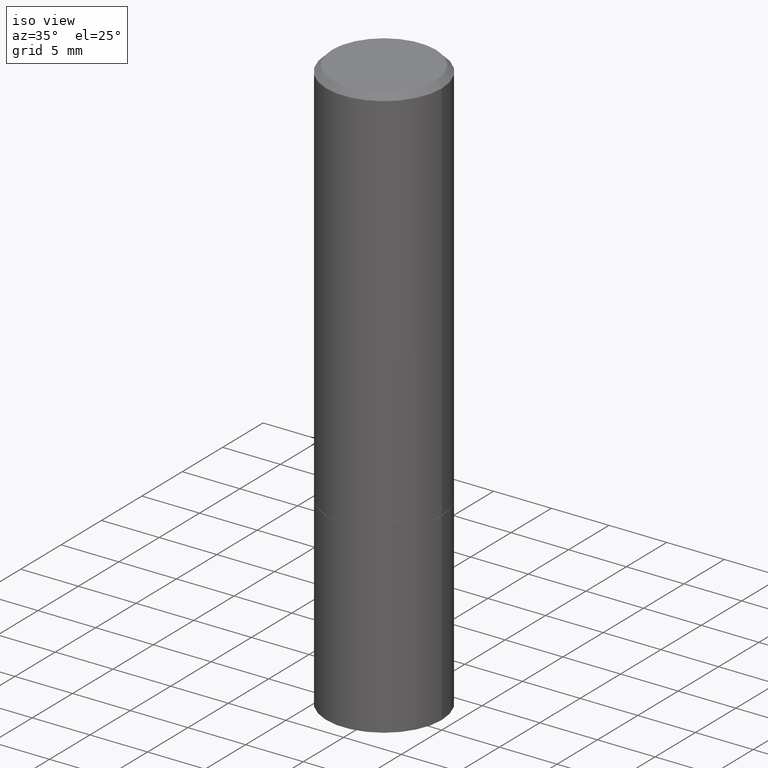
[diagram: clean part render]
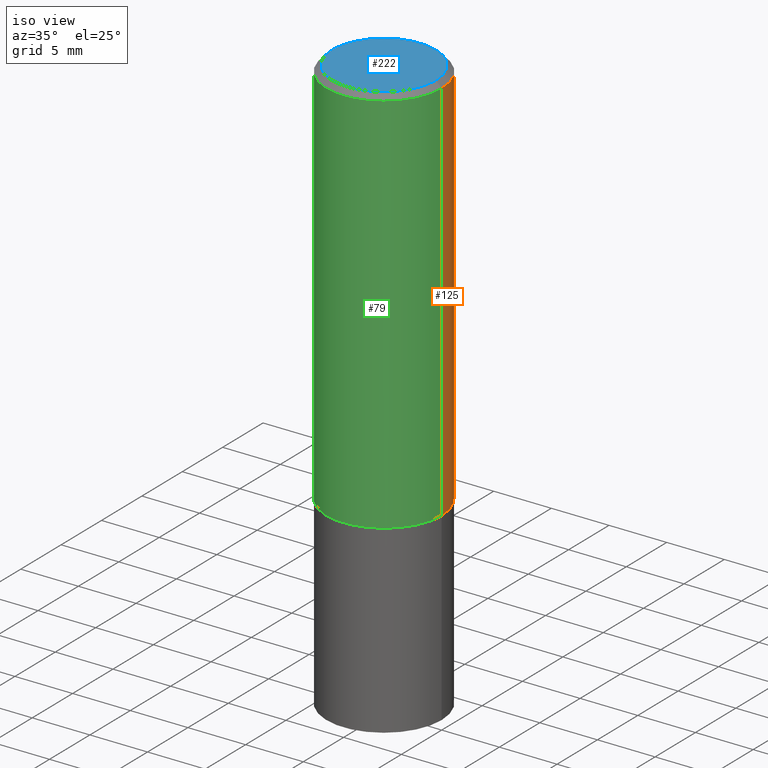
[diagram: same view with three faces highlighted in distinct colors, each labeled with its STEP entity id]
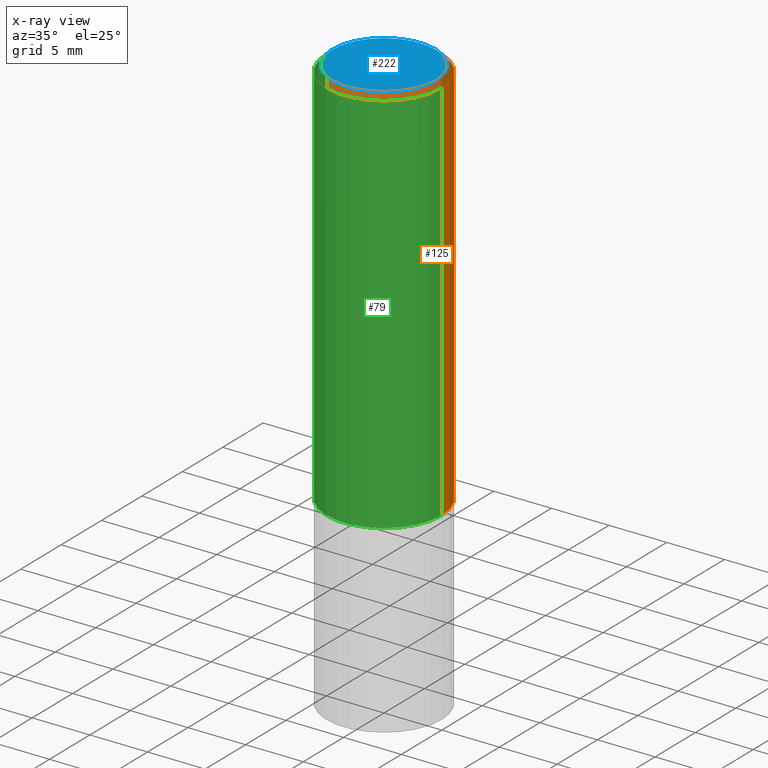
[diagram: x-ray of the same camera — body ghosted, the three highlighted faces saturated]
A machine part, iso view with three faces highlighted in distinct colors.
The next image is the same camera in x-ray (body ghosted, the three faces saturated) — at least one of them is partly hidden behind the body in this view.
Their STEP definitions:

[orange] entity #125 — the highlighted cylindrical surface (partial cylindrical patch) has radius 5 mm, axis along (-0, 0, 1).
#2 = EDGE_CURVE ( 'NONE', #134, #304, #193, .T. ) ;
#9 = CIRCLE ( 'NONE', #241, 0.1968499999999998307 ) ;
#12 = CARTESIAN_POINT ( 'NONE',  ( 4.890937612370284544E-31, -6.982962677686307633E-17, -0.02000000000000004552 ) ) ;
#18 = AXIS2_PLACEMENT_3D ( 'NONE', #150, #294, #35 ) ;
#19 = ORIENTED_EDGE ( 'NONE', *, *, #2, .T. ) ;
#30 = LINE ( 'NONE', #266, #109 ) ;
#35 = DIRECTION ( 'NONE',  ( 1.000000000000000000, -6.982962677686266711E-15, 4.876176775795935793E-29 ) ) ;
#68 = ORIENTED_EDGE ( 'NONE', *, *, #217, .T. ) ;
#89 = CARTESIAN_POINT ( 'NONE',  ( 0.1968499999999998307, -1.420318657638187938E-15, -0.02000000000000004552 ) ) ;
#91 = EDGE_CURVE ( 'NONE', #305, #111, #9, .T. ) ;
#93 = ORIENTED_EDGE ( 'NONE', *, *, #91, .F. ) ;
#101 = CYLINDRICAL_SURFACE ( 'NONE', #18, 0.1968499999999999417 ) ;
#109 = VECTOR ( 'NONE', #239, 39.37007874015748143 ) ;
#110 = ORIENTED_EDGE ( 'NONE', *, *, #300, .F. ) ;
#111 = VERTEX_POINT ( 'NONE', #316 ) ;
#125 = ADVANCED_FACE ( 'NONE', ( #350 ), #101, .T. ) ;
#134 = VERTEX_POINT ( 'NONE', #236 ) ;
#137 = CARTESIAN_POINT ( 'NONE',  ( 0.1968499999999999417, -1.374596203102541214E-15, 9.598753983154296654E-30 ) ) ;
#150 = CARTESIAN_POINT ( 'NONE',  ( 0.000000000000000000, 0.000000000000000000, 0.000000000000000000 ) ) ;
#177 = DIRECTION ( 'NONE',  ( -2.445468806185136597E-29, 3.491481338843145583E-15, 1.000000000000000000 ) ) ;
#179 = EDGE_LOOP ( 'NONE', ( #19, #68, #93, #110 ) ) ;
#183 = AXIS2_PLACEMENT_3D ( 'NONE', #255, #360, #335 ) ;
#193 = CIRCLE ( 'NONE', #183, 0.1968500000000000527 ) ;
#217 = EDGE_CURVE ( 'NONE', #304, #111, #30, .T. ) ;
#236 = CARTESIAN_POINT ( 'NONE',  ( 0.1968500000000000527, -6.044801641939134127E-15, -1.337599999999999900 ) ) ;
#239 = DIRECTION ( 'NONE',  ( -2.445468806185136877E-29, 3.491481338843145188E-15, 1.000000000000000000 ) ) ;
#241 = AXIS2_PLACEMENT_3D ( 'NONE', #12, #177, #290 ) ;
#252 = LINE ( 'NONE', #137, #346 ) ;
#255 = CARTESIAN_POINT ( 'NONE',  ( 3.271059075153238310E-29, -4.670205438836591729E-15, -1.337599999999999900 ) ) ;
#266 = CARTESIAN_POINT ( 'NONE',  ( -0.1968499999999999417, 1.398703375343756802E-15, -9.682923725166779474E-30 ) ) ;
#290 = DIRECTION ( 'NONE',  ( 1.000000000000000000, -6.982962677686266711E-15, 0.000000000000000000 ) ) ;
#294 = DIRECTION ( 'NONE',  ( -2.445468806185136597E-29, 3.491481338843145583E-15, 1.000000000000000000 ) ) ;
#300 = EDGE_CURVE ( 'NONE', #134, #305, #252, .T. ) ;
#304 = VERTEX_POINT ( 'NONE', #357 ) ;
#305 = VERTEX_POINT ( 'NONE', #89 ) ;
#316 = CARTESIAN_POINT ( 'NONE',  ( -0.1968499999999998307, 1.304766576325677324E-15, -0.02000000000000004552 ) ) ;
#326 = DIRECTION ( 'NONE',  ( -2.445468806185136877E-29, 3.491481338843145188E-15, 1.000000000000000000 ) ) ;
#335 = DIRECTION ( 'NONE',  ( 1.000000000000000000, -6.982962677686266711E-15, 0.000000000000000000 ) ) ;
#346 = VECTOR ( 'NONE', #326, 39.37007874015748143 ) ;
#350 = FACE_OUTER_BOUND ( 'NONE', #179, .T. ) ;
#357 = CARTESIAN_POINT ( 'NONE',  ( -0.1968500000000000527, -9.713141574629691345E-16, -1.337599999999999900 ) ) ;
#360 = DIRECTION ( 'NONE',  ( -2.445468806185136597E-29, 3.491481338843145583E-15, 1.000000000000000000 ) ) ;

[blue] entity #222 — the highlighted planar face has unit normal (0, -0, -1).
#7 = CARTESIAN_POINT ( 'NONE',  ( 0.1768499999999998407, -1.316798864272041155E-15, 8.922390245354091239E-30 ) ) ;
#33 = DIRECTION ( 'NONE',  ( 2.438088387897960049E-29, -3.491481338843145188E-15, -1.000000000000000000 ) ) ;
#36 = AXIS2_PLACEMENT_3D ( 'NONE', #59, #296, #205 ) ;
#59 = CARTESIAN_POINT ( 'NONE',  ( 0.000000000000000000, 0.000000000000000000, 0.000000000000000000 ) ) ;
#64 = CIRCLE ( 'NONE', #315, 0.1768499999999998407 ) ;
#65 = CARTESIAN_POINT ( 'NONE',  ( 1.234936949548815012E-15, 0.1768499999999998407, -6.174684747744098725E-16 ) ) ;
#72 = ORIENTED_EDGE ( 'NONE', *, *, #265, .T. ) ;
#76 = AXIS2_PLACEMENT_3D ( 'NONE', #65, #33, #152 ) ;
#86 = VERTEX_POINT ( 'NONE', #7 ) ;
#99 = EDGE_CURVE ( 'NONE', #86, #359, #131, .T. ) ;
#119 = CARTESIAN_POINT ( 'NONE',  ( -0.1768499999999998407, 1.269851762937246464E-15, -8.758475317130876682E-30 ) ) ;
#131 = CIRCLE ( 'NONE', #36, 0.1768499999999998407 ) ;
#143 = EDGE_LOOP ( 'NONE', ( #72, #362 ) ) ;
#152 = DIRECTION ( 'NONE',  ( -1.000000000000000000, 6.982962677686265922E-15, -4.876176775795935793E-29 ) ) ;
#191 = CARTESIAN_POINT ( 'NONE',  ( 0.000000000000000000, 0.000000000000000000, 0.000000000000000000 ) ) ;
#205 = DIRECTION ( 'NONE',  ( 1.000000000000000000, -6.982962677686266711E-15, 4.876176775795936353E-29 ) ) ;
#222 = ADVANCED_FACE ( 'NONE', ( #344 ), #242, .F. ) ;
#242 = PLANE ( 'NONE',  #76 ) ;
#265 = EDGE_CURVE ( 'NONE', #359, #86, #64, .T. ) ;
#296 = DIRECTION ( 'NONE',  ( -2.445468806185136597E-29, 3.491481338843145583E-15, 1.000000000000000000 ) ) ;
#303 = DIRECTION ( 'NONE',  ( -2.445468806185136597E-29, 3.491481338843145583E-15, 1.000000000000000000 ) ) ;
#315 = AXIS2_PLACEMENT_3D ( 'NONE', #191, #303, #355 ) ;
#344 = FACE_OUTER_BOUND ( 'NONE', #143, .T. ) ;
#355 = DIRECTION ( 'NONE',  ( 1.000000000000000000, -6.982962677686266711E-15, 4.876176775795936353E-29 ) ) ;
#359 = VERTEX_POINT ( 'NONE', #119 ) ;
#362 = ORIENTED_EDGE ( 'NONE', *, *, #99, .T. ) ;

[green] entity #79 — the highlighted cylindrical surface (partial cylindrical patch) has radius 5 mm, axis along (-0, 0, 1).
#3 = CARTESIAN_POINT ( 'NONE',  ( 3.271059075153238310E-29, -4.670205438836591729E-15, -1.337599999999999900 ) ) ;
#4 = DIRECTION ( 'NONE',  ( 1.000000000000000000, -6.982962677686266711E-15, 0.000000000000000000 ) ) ;
#30 = LINE ( 'NONE', #266, #109 ) ;
#79 = ADVANCED_FACE ( 'NONE', ( #366 ), #336, .T. ) ;
#89 = CARTESIAN_POINT ( 'NONE',  ( 0.1968499999999998307, -1.420318657638187938E-15, -0.02000000000000004552 ) ) ;
#95 = ORIENTED_EDGE ( 'NONE', *, *, #300, .T. ) ;
#97 = DIRECTION ( 'NONE',  ( -2.445468806185136597E-29, 3.491481338843145583E-15, 1.000000000000000000 ) ) ;
#103 = CIRCLE ( 'NONE', #228, 0.1968500000000000527 ) ;
#109 = VECTOR ( 'NONE', #239, 39.37007874015748143 ) ;
#111 = VERTEX_POINT ( 'NONE', #316 ) ;
#120 = CARTESIAN_POINT ( 'NONE',  ( 4.890937612370284544E-31, -6.982962677686307633E-17, -0.02000000000000004552 ) ) ;
#130 = EDGE_CURVE ( 'NONE', #111, #305, #194, .T. ) ;
#134 = VERTEX_POINT ( 'NONE', #236 ) ;
#137 = CARTESIAN_POINT ( 'NONE',  ( 0.1968499999999999417, -1.374596203102541214E-15, 9.598753983154296654E-30 ) ) ;
#151 = EDGE_LOOP ( 'NONE', ( #281, #283, #95, #342 ) ) ;
#153 = EDGE_CURVE ( 'NONE', #304, #134, #103, .T. ) ;
#182 = CARTESIAN_POINT ( 'NONE',  ( 0.000000000000000000, 0.000000000000000000, 0.000000000000000000 ) ) ;
#194 = CIRCLE ( 'NONE', #200, 0.1968499999999998307 ) ;
#200 = AXIS2_PLACEMENT_3D ( 'NONE', #120, #314, #4 ) ;
#212 = DIRECTION ( 'NONE',  ( 1.000000000000000000, -6.982962677686266711E-15, 4.876176775795935793E-29 ) ) ;
#217 = EDGE_CURVE ( 'NONE', #304, #111, #30, .T. ) ;
#228 = AXIS2_PLACEMENT_3D ( 'NONE', #3, #97, #319 ) ;
#236 = CARTESIAN_POINT ( 'NONE',  ( 0.1968500000000000527, -6.044801641939134127E-15, -1.337599999999999900 ) ) ;
#239 = DIRECTION ( 'NONE',  ( -2.445468806185136877E-29, 3.491481338843145188E-15, 1.000000000000000000 ) ) ;
#252 = LINE ( 'NONE', #137, #346 ) ;
#266 = CARTESIAN_POINT ( 'NONE',  ( -0.1968499999999999417, 1.398703375343756802E-15, -9.682923725166779474E-30 ) ) ;
#267 = DIRECTION ( 'NONE',  ( -2.445468806185136597E-29, 3.491481338843145583E-15, 1.000000000000000000 ) ) ;
#281 = ORIENTED_EDGE ( 'NONE', *, *, #217, .F. ) ;
#283 = ORIENTED_EDGE ( 'NONE', *, *, #153, .T. ) ;
#291 = AXIS2_PLACEMENT_3D ( 'NONE', #182, #267, #212 ) ;
#300 = EDGE_CURVE ( 'NONE', #134, #305, #252, .T. ) ;
#304 = VERTEX_POINT ( 'NONE', #357 ) ;
#305 = VERTEX_POINT ( 'NONE', #89 ) ;
#314 = DIRECTION ( 'NONE',  ( -2.445468806185136597E-29, 3.491481338843145583E-15, 1.000000000000000000 ) ) ;
#316 = CARTESIAN_POINT ( 'NONE',  ( -0.1968499999999998307, 1.304766576325677324E-15, -0.02000000000000004552 ) ) ;
#319 = DIRECTION ( 'NONE',  ( 1.000000000000000000, -6.982962677686266711E-15, 0.000000000000000000 ) ) ;
#326 = DIRECTION ( 'NONE',  ( -2.445468806185136877E-29, 3.491481338843145188E-15, 1.000000000000000000 ) ) ;
#336 = CYLINDRICAL_SURFACE ( 'NONE', #291, 0.1968499999999999417 ) ;
#342 = ORIENTED_EDGE ( 'NONE', *, *, #130, .F. ) ;
#346 = VECTOR ( 'NONE', #326, 39.37007874015748143 ) ;
#357 = CARTESIAN_POINT ( 'NONE',  ( -0.1968500000000000527, -9.713141574629691345E-16, -1.337599999999999900 ) ) ;
#366 = FACE_OUTER_BOUND ( 'NONE', #151, .T. ) ;